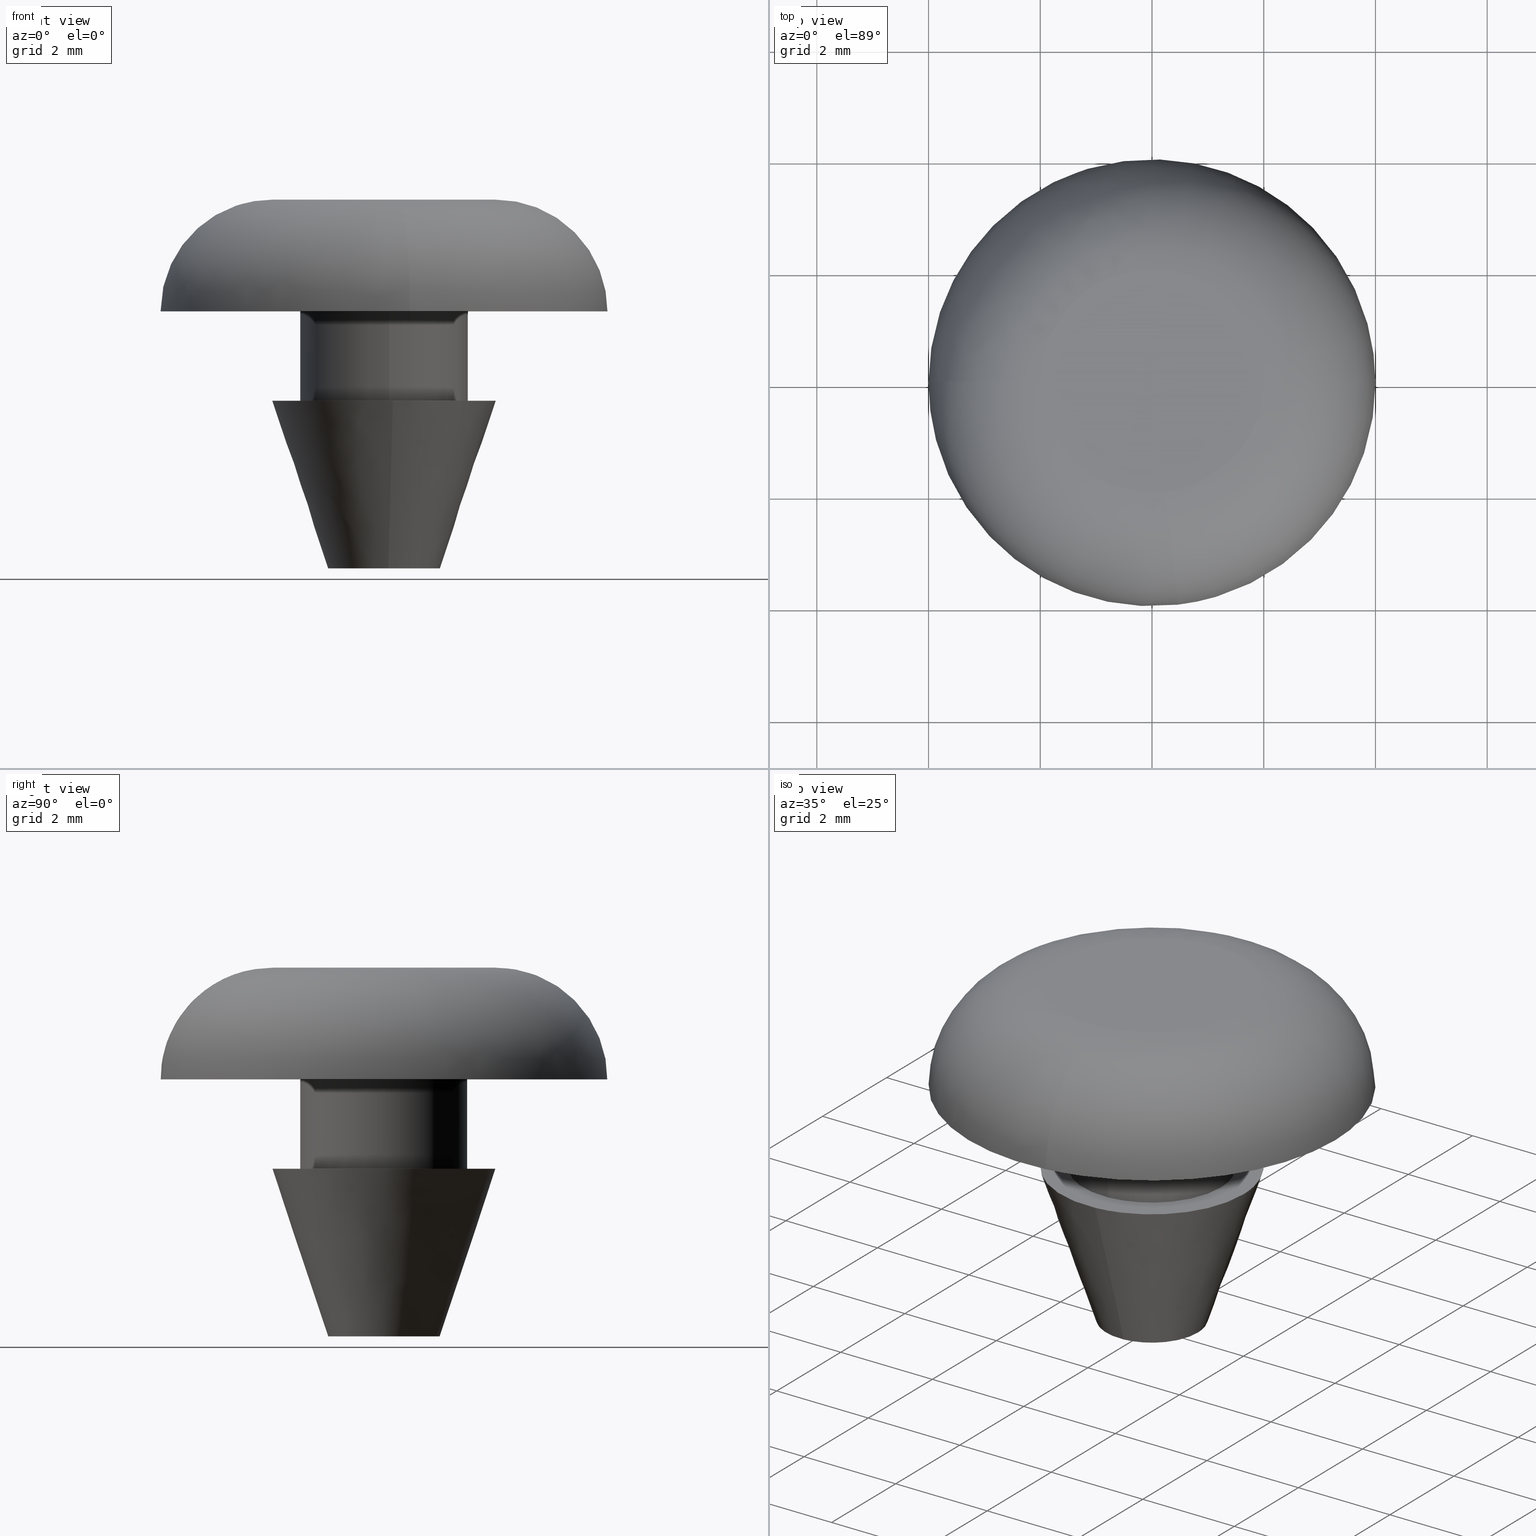
[diagram: canonical four-view strip — front | top / right | iso, engineering-drawing reading convention]
A machine part, canonical four-view strip (front | top / right | iso — engineering-drawing reading convention). The complete STEP part file that produces these views, byte-faithful:
ISO-10303-21;
HEADER;
/****************************************************************
 * Generated by software with PDE/Lib inside                    *
 * PDElib Version 4.4.1-0003, patched  Thursday August 19 11:58 *
 * International Technegroup Inc. (www.iti-oh.com)              *
 ****************************************************************/
FILE_DESCRIPTION((''),'2;1');
FILE_NAME('','2005-12-15T09:46:41',(''),(''),'','CADfix','');
FILE_SCHEMA(('AUTOMOTIVE_DESIGN'));
ENDSEC;
DATA;
#5=APPLICATION_CONTEXT('automotive design');
#6=APPLICATION_PROTOCOL_DEFINITION('Draft International Standard','automotive_design',1998,#5);
#7=PRODUCT_CONTEXT('None',#5,'mechanical');
#8=PRODUCT('cushion','','None',(#7));
#9=PRODUCT_RELATED_PRODUCT_CATEGORY('part','description',(#8));
#10=PRODUCT_DEFINITION_FORMATION('None','None',#8);
#11=PRODUCT_DEFINITION_CONTEXT('part definition',#5,'design');
#12=PRODUCT_DEFINITION('None','None',#10,#11);
#18=(NAMED_UNIT(*)PLANE_ANGLE_UNIT()SI_UNIT($,.RADIAN.));
#19=DIMENSIONAL_EXPONENTS(0.0,0.0,0.0,0.0,0.0,0.0,0.0);
#20=PLANE_ANGLE_MEASURE_WITH_UNIT(PLANE_ANGLE_MEASURE(0.017453292500000),#18);
#24=(CONVERSION_BASED_UNIT('DEGREE',#20)NAMED_UNIT(#19)PLANE_ANGLE_UNIT());
#28=(NAMED_UNIT(*)SI_UNIT($,.STERADIAN.)SOLID_ANGLE_UNIT());
#32=(LENGTH_UNIT()NAMED_UNIT(*)SI_UNIT(.MILLI.,.METRE.));
#34=UNCERTAINTY_MEASURE_WITH_UNIT(LENGTH_MEASURE(0.001000000000000),#32,'DISTANCE_ACCURACY_VALUE','');
#36=(GEOMETRIC_REPRESENTATION_CONTEXT(3)GLOBAL_UNCERTAINTY_ASSIGNED_CONTEXT((#34))GLOBAL_UNIT_ASSIGNED_CONTEXT((#24,#28,#32))REPRESENTATION_CONTEXT('None','None'));
#37=AXIS2_PLACEMENT_3D('',#38,#39,#40);
#38=CARTESIAN_POINT('',(0.0,0.0,0.0));
#39=DIRECTION('',(0.0,0.0,1.0));
#40=DIRECTION('',(1.0,0.0,0.0));
#41=ADVANCED_BREP_SHAPE_REPRESENTATION('',(#37,#883),#36);
#42=PRODUCT_DEFINITION_SHAPE('','',#12);
#43=SHAPE_DEFINITION_REPRESENTATION(#42,#41);
#44=CARTESIAN_POINT('',(0.059017117328379,-0.496504763181833,4.715000000000001));
#45=CARTESIAN_POINT('',(0.044807364318989,-0.498193807724303,4.715000000000001));
#46=CARTESIAN_POINT('',(0.030524269767428,-0.499067399210933,4.715000000000001));
#47=CARTESIAN_POINT('',(-0.468543129443505,-0.529591668978362,4.715000000000000));
#48=CARTESIAN_POINT('',(-0.499067399210933,-0.030524269767428,4.715000000000001));
#49=CARTESIAN_POINT('',(-0.529591668978362,0.468543129443505,4.715000000000000));
#50=CARTESIAN_POINT('',(-0.030524269767428,0.499067399210933,4.715000000000001));
#51=CARTESIAN_POINT('',(0.059017117328379,-0.496504763181833,-0.117875000000000));
#52=CARTESIAN_POINT('',(0.044807364318989,-0.498193807724303,-0.117875000000000));
#53=CARTESIAN_POINT('',(0.030524269767428,-0.499067399210933,-0.117875000000000));
#54=CARTESIAN_POINT('',(-0.468543129443505,-0.529591668978362,-0.117875000000000));
#55=CARTESIAN_POINT('',(-0.499067399210933,-0.030524269767428,-0.117875000000000));
#56=CARTESIAN_POINT('',(-0.529591668978362,0.468543129443505,-0.117875000000000));
#57=CARTESIAN_POINT('',(-0.030524269767428,0.499067399210933,-0.117875000000000));
#65=(BOUNDED_SURFACE()B_SPLINE_SURFACE(2,1,((#44,#51),(#45,#52),(#46,#53),(#47,#54),(#48,#55),(#49,#56),(#50,#57)),.UNSPECIFIED.,.F.,.F.,.U.)B_SPLINE_SURFACE_WITH_KNOTS((3,2,2,3),(2,2),(3.078760800517997,3.141592653589793,4.712388980384690,6.283185307179586),(0.0,4.832875000000001),.UNSPECIFIED.)GEOMETRIC_REPRESENTATION_ITEM()RATIONAL_B_SPLINE_SURFACE(((0.977505800795127,0.977505800795127),(0.988284271247462,0.988284271247462),(1.0,1.0),(0.707106781186548,0.707106781186548),(1.0,1.0),(0.707106781186548,0.707106781186548),(1.0,1.0)))REPRESENTATION_ITEM('')SURFACE());
#66=CARTESIAN_POINT('',(0.059017117343035,-0.496504763180091,4.600000000000000));
#67=VERTEX_POINT('',#66);
#68=CARTESIAN_POINT('',(-0.500000000000000,0.0,4.600000000000000));
#69=VERTEX_POINT('',#68);
#70=CARTESIAN_POINT('',(0.059017117343035,-0.496504763180091,4.600000000000000));
#71=CARTESIAN_POINT('',(0.029612059840766,-0.500000000000000,4.600000000000001));
#72=CARTESIAN_POINT('',(0.0,-0.500000000000000,4.600000000000000));
#73=CARTESIAN_POINT('',(-0.500000000000000,-0.500000000000000,4.599999999999999));
#74=CARTESIAN_POINT('',(-0.500000000000000,0.0,4.600000000000000));
#82=(BOUNDED_CURVE()B_SPLINE_CURVE(2,(#70,#71,#72,#73,#74),.UNSPECIFIED.,.F.,.U.)B_SPLINE_CURVE_WITH_KNOTS((3,2,3),(0.229562473505667,0.250000000000000,0.500000000000000),.UNSPECIFIED.)CURVE()GEOMETRIC_REPRESENTATION_ITEM()RATIONAL_B_SPLINE_CURVE((0.956026754168330,0.976055948321959,1.0,0.707106781186548,1.0))REPRESENTATION_ITEM(''));
#83=EDGE_CURVE('',#67,#69,#82,.T.);
#84=ORIENTED_EDGE('',*,*,#83,.F.);
#85=CARTESIAN_POINT('',(0.059017117343035,-0.496504763180091,-7.808428E-017));
#86=VERTEX_POINT('',#85);
#87=CARTESIAN_POINT('',(0.059017117343035,-0.496504763180091,4.600000000000000));
#88=CARTESIAN_POINT('',(0.059017117343035,-0.496504763180091,-7.808428E-017));
#89=QUASI_UNIFORM_CURVE('',1,(#87,#88),.UNSPECIFIED.,.F.,.U.);
#90=EDGE_CURVE('',#67,#86,#89,.T.);
#91=ORIENTED_EDGE('',*,*,#90,.T.);
#92=CARTESIAN_POINT('',(-0.500000000000000,0.0,0.0));
#93=VERTEX_POINT('',#92);
#94=CARTESIAN_POINT('',(0.059017117343035,-0.496504763180091,-7.808428E-017));
#95=CARTESIAN_POINT('',(0.029612059840765,-0.500000000000000,0.0));
#96=CARTESIAN_POINT('',(0.0,-0.500000000000000,0.0));
#97=CARTESIAN_POINT('',(-0.500000000000000,-0.500000000000000,0.0));
#98=CARTESIAN_POINT('',(-0.500000000000000,0.0,0.0));
#106=(BOUNDED_CURVE()B_SPLINE_CURVE(2,(#94,#95,#96,#97,#98),.UNSPECIFIED.,.F.,.U.)B_SPLINE_CURVE_WITH_KNOTS((3,2,3),(0.229562473505667,0.250000000000000,0.500000000000000),.UNSPECIFIED.)CURVE()GEOMETRIC_REPRESENTATION_ITEM()RATIONAL_B_SPLINE_CURVE((0.956026754168330,0.976055948321959,1.0,0.707106781186548,1.0))REPRESENTATION_ITEM(''));
#107=EDGE_CURVE('',#86,#93,#106,.T.);
#108=ORIENTED_EDGE('',*,*,#107,.T.);
#109=CARTESIAN_POINT('',(-0.030523833243788,0.499067425909480,4.579670E-016));
#110=VERTEX_POINT('',#109);
#111=CARTESIAN_POINT('',(-0.500000000000000,0.0,0.0));
#112=CARTESIAN_POINT('',(-0.500000000000000,0.470353857806655,0.0));
#113=CARTESIAN_POINT('',(-0.030523833243788,0.499067425909480,4.579670E-016));
#121=(BOUNDED_CURVE()B_SPLINE_CURVE(2,(#111,#112,#113),.UNSPECIFIED.,.F.,.U.)B_SPLINE_CURVE_WITH_KNOTS((3,3),(0.500000000000000,0.739333264088066),.UNSPECIFIED.)CURVE()GEOMETRIC_REPRESENTATION_ITEM()RATIONAL_B_SPLINE_CURVE((1.0,0.719603639648465,0.976072688587702))REPRESENTATION_ITEM(''));
#122=EDGE_CURVE('',#93,#110,#121,.T.);
#123=ORIENTED_EDGE('',*,*,#122,.T.);
#124=CARTESIAN_POINT('',(-0.030523827905823,0.499067426235954,4.600000000000001));
#125=VERTEX_POINT('',#124);
#126=CARTESIAN_POINT('',(-0.030523827905823,0.499067426235954,4.600000000000001));
#127=CARTESIAN_POINT('',(-0.030523833243788,0.499067425909480,4.579670E-016));
#128=QUASI_UNIFORM_CURVE('',1,(#126,#127),.UNSPECIFIED.,.F.,.U.);
#129=EDGE_CURVE('',#125,#110,#128,.T.);
#130=ORIENTED_EDGE('',*,*,#129,.F.);
#131=CARTESIAN_POINT('',(-0.500000000000000,0.0,4.600000000000000));
#132=CARTESIAN_POINT('',(-0.500000000000000,0.470353867887155,4.599999999999999));
#133=CARTESIAN_POINT('',(-0.030523827905823,0.499067426235954,4.600000000000001));
#141=(BOUNDED_CURVE()B_SPLINE_CURVE(2,(#131,#132,#133),.UNSPECIFIED.,.F.,.U.)B_SPLINE_CURVE_WITH_KNOTS((3,3),(0.500000000000000,0.739333267779149),.UNSPECIFIED.)CURVE()GEOMETRIC_REPRESENTATION_ITEM()RATIONAL_B_SPLINE_CURVE((1.0,0.719603635324092,0.976072696498417))REPRESENTATION_ITEM(''));
#142=EDGE_CURVE('',#69,#125,#141,.T.);
#143=ORIENTED_EDGE('',*,*,#142,.F.);
#144=EDGE_LOOP('',(#84,#91,#108,#123,#130,#143));
#145=FACE_OUTER_BOUND('',#144,.T.);
#146=ADVANCED_FACE('',(#145),#65,.F.);
#147=CARTESIAN_POINT('',(-0.030524269767428,0.499067399210933,4.715000000000001));
#148=CARTESIAN_POINT('',(0.468543129443505,0.529591668978362,4.715000000000000));
#149=CARTESIAN_POINT('',(0.499067399210933,0.030524269767428,4.715000000000001));
#150=CARTESIAN_POINT('',(0.527893098366264,-0.440771745419750,4.715000000000000));
#151=CARTESIAN_POINT('',(0.059017117328379,-0.496504763181833,4.715000000000001));
#152=CARTESIAN_POINT('',(-0.030524269767428,0.499067399210933,-0.117875000000000));
#153=CARTESIAN_POINT('',(0.468543129443505,0.529591668978362,-0.117875000000000));
#154=CARTESIAN_POINT('',(0.499067399210933,0.030524269767428,-0.117875000000000));
#155=CARTESIAN_POINT('',(0.527893098366264,-0.440771745419750,-0.117875000000000));
#156=CARTESIAN_POINT('',(0.059017117328379,-0.496504763181833,-0.117875000000000));
#164=(BOUNDED_SURFACE()B_SPLINE_SURFACE(2,1,((#147,#152),(#148,#153),(#149,#154),(#150,#155),(#151,#156)),.UNSPECIFIED.,.F.,.F.,.U.)B_SPLINE_SURFACE_WITH_KNOTS((3,2,3),(2,2),(0.0,1.570796326794897,3.078760800517997),(0.0,4.832875000000001),.UNSPECIFIED.)GEOMETRIC_REPRESENTATION_ITEM()RATIONAL_B_SPLINE_SURFACE(((1.0,1.0),(0.707106781186548,0.707106781186548),(1.0,1.0),(0.718822509939086,0.718822509939086),(0.977505800795127,0.977505800795127)))REPRESENTATION_ITEM('')SURFACE());
#165=CARTESIAN_POINT('',(0.500000000000000,0.0,4.600000000000000));
#166=VERTEX_POINT('',#165);
#167=CARTESIAN_POINT('',(0.500000000000000,0.0,4.600000000000000));
#168=CARTESIAN_POINT('',(0.500000000000000,-0.444087262949283,4.600000000000000));
#169=CARTESIAN_POINT('',(0.059017117343035,-0.496504763180091,4.600000000000000));
#177=(BOUNDED_CURVE()B_SPLINE_CURVE(2,(#167,#168,#169),.UNSPECIFIED.,.F.,.U.)B_SPLINE_CURVE_WITH_KNOTS((3,3),(0.0,0.229562473505667),.UNSPECIFIED.)CURVE()GEOMETRIC_REPRESENTATION_ITEM()RATIONAL_B_SPLINE_CURVE((1.0,0.731050832864589,0.956026754168330))REPRESENTATION_ITEM(''));
#178=EDGE_CURVE('',#166,#67,#177,.T.);
#179=ORIENTED_EDGE('',*,*,#178,.F.);
#180=CARTESIAN_POINT('',(-0.030523827905823,0.499067426235954,4.600000000000001));
#181=CARTESIAN_POINT('',(-0.015275938548788,0.500000000000000,4.600000000000000));
#182=CARTESIAN_POINT('',(0.0,0.500000000000000,4.600000000000000));
#183=CARTESIAN_POINT('',(0.500000000000000,0.500000000000000,4.599999999999999));
#184=CARTESIAN_POINT('',(0.500000000000000,0.0,4.600000000000000));
#192=(BOUNDED_CURVE()B_SPLINE_CURVE(2,(#180,#181,#182,#183,#184),.UNSPECIFIED.,.F.,.U.)B_SPLINE_CURVE_WITH_KNOTS((3,2,3),(0.739333267779149,0.750000000000000,1.0),.UNSPECIFIED.)CURVE()GEOMETRIC_REPRESENTATION_ITEM()RATIONAL_B_SPLINE_CURVE((0.976072696498416,0.987503145862455,1.0,0.707106781186548,1.0))REPRESENTATION_ITEM(''));
#193=EDGE_CURVE('',#125,#166,#192,.T.);
#194=ORIENTED_EDGE('',*,*,#193,.F.);
#195=ORIENTED_EDGE('',*,*,#129,.T.);
#196=CARTESIAN_POINT('',(0.500000000000000,0.0,0.0));
#197=VERTEX_POINT('',#196);
#198=CARTESIAN_POINT('',(-0.030523833243788,0.499067425909480,4.579670E-016));
#199=CARTESIAN_POINT('',(-0.015275943901719,0.500000000000000,0.0));
#200=CARTESIAN_POINT('',(0.0,0.500000000000000,0.0));
#201=CARTESIAN_POINT('',(0.500000000000000,0.500000000000000,0.0));
#202=CARTESIAN_POINT('',(0.500000000000000,0.0,0.0));
#210=(BOUNDED_CURVE()B_SPLINE_CURVE(2,(#198,#199,#200,#201,#202),.UNSPECIFIED.,.F.,.U.)B_SPLINE_CURVE_WITH_KNOTS((3,2,3),(0.739333264088067,0.750000000000000,1.0),.UNSPECIFIED.)CURVE()GEOMETRIC_REPRESENTATION_ITEM()RATIONAL_B_SPLINE_CURVE((0.976072688587704,0.987503141538084,1.0,0.707106781186548,1.0))REPRESENTATION_ITEM(''));
#211=EDGE_CURVE('',#110,#197,#210,.T.);
#212=ORIENTED_EDGE('',*,*,#211,.T.);
#213=CARTESIAN_POINT('',(0.500000000000000,0.0,0.0));
#214=CARTESIAN_POINT('',(0.500000000000000,-0.444087262949283,0.0));
#215=CARTESIAN_POINT('',(0.059017117343035,-0.496504763180091,-7.808428E-017));
#223=(BOUNDED_CURVE()B_SPLINE_CURVE(2,(#213,#214,#215),.UNSPECIFIED.,.F.,.U.)B_SPLINE_CURVE_WITH_KNOTS((3,3),(0.0,0.229562473505667),.UNSPECIFIED.)CURVE()GEOMETRIC_REPRESENTATION_ITEM()RATIONAL_B_SPLINE_CURVE((1.0,0.731050832864589,0.956026754168330))REPRESENTATION_ITEM(''));
#224=EDGE_CURVE('',#197,#86,#223,.T.);
#225=ORIENTED_EDGE('',*,*,#224,.T.);
#226=ORIENTED_EDGE('',*,*,#90,.F.);
#227=EDGE_LOOP('',(#179,#194,#195,#212,#225,#226));
#228=FACE_OUTER_BOUND('',#227,.T.);
#229=ADVANCED_FACE('',(#228),#164,.F.);
#230=CARTESIAN_POINT('',(-0.177051351985138,1.489514289545500,4.640000000000001));
#231=CARTESIAN_POINT('',(-0.134422092956966,1.494581423172908,4.640000000000001));
#232=CARTESIAN_POINT('',(-0.091572809302285,1.497202197632800,4.640000000000001));
#233=CARTESIAN_POINT('',(1.405629388330515,1.588775006935085,4.640000000000001));
#234=CARTESIAN_POINT('',(1.497202197632800,0.091572809302285,4.640000000000001));
#235=CARTESIAN_POINT('',(1.588775006935085,-1.405629388330515,4.640000000000001));
#236=CARTESIAN_POINT('',(0.091572809302285,-1.497202197632800,4.640000000000001));
#237=CARTESIAN_POINT('',(-0.177051351985138,1.489514289545500,2.959000000000000));
#238=CARTESIAN_POINT('',(-0.134422092956966,1.494581423172908,2.959000000000001));
#239=CARTESIAN_POINT('',(-0.091572809302285,1.497202197632800,2.959000000000000));
#240=CARTESIAN_POINT('',(1.405629388330515,1.588775006935085,2.959000000000000));
#241=CARTESIAN_POINT('',(1.497202197632800,0.091572809302285,2.959000000000000));
#242=CARTESIAN_POINT('',(1.588775006935085,-1.405629388330515,2.959000000000000));
#243=CARTESIAN_POINT('',(0.091572809302285,-1.497202197632800,2.959000000000000));
#251=(BOUNDED_SURFACE()B_SPLINE_SURFACE(2,1,((#230,#237),(#231,#238),(#232,#239),(#233,#240),(#234,#241),(#235,#242),(#236,#243)),.UNSPECIFIED.,.F.,.F.,.U.)B_SPLINE_SURFACE_WITH_KNOTS((3,2,2,3),(2,2),(3.078760800517997,3.141592653589793,4.712388980384690,6.283185307179586),(0.0,1.0),.UNSPECIFIED.)GEOMETRIC_REPRESENTATION_ITEM()RATIONAL_B_SPLINE_SURFACE(((0.977505800795127,0.977505800795127),(0.988284271247462,0.988284271247462),(1.0,1.0),(0.707106781186548,0.707106781186548),(1.0,1.0),(0.707106781186548,0.707106781186548),(1.0,1.0)))REPRESENTATION_ITEM('')SURFACE());
#252=CARTESIAN_POINT('',(-0.177050448908415,1.489514396889302,4.599999999999993));
#253=VERTEX_POINT('',#252);
#254=CARTESIAN_POINT('',(1.500000000000000,0.0,4.600000000000000));
#255=VERTEX_POINT('',#254);
#256=CARTESIAN_POINT('',(-0.177050448908415,1.489514396889302,4.599999999999993));
#257=CARTESIAN_POINT('',(-0.088835266854029,1.500000000000000,4.600000000000000));
#258=CARTESIAN_POINT('',(0.0,1.500000000000000,4.600000000000000));
#259=CARTESIAN_POINT('',(1.500000000000000,1.500000000000000,4.599999999999999));
#260=CARTESIAN_POINT('',(1.500000000000000,0.0,4.600000000000000));
#268=(BOUNDED_CURVE()B_SPLINE_CURVE(2,(#256,#257,#258,#259,#260),.UNSPECIFIED.,.F.,.U.)B_SPLINE_CURVE_WITH_KNOTS((3,2,3),(0.229562678445430,0.250000000000000,0.500000000000000),.UNSPECIFIED.)CURVE()GEOMETRIC_REPRESENTATION_ITEM()RATIONAL_B_SPLINE_CURVE((0.956027155859047,0.976056188423826,1.0,0.707106781186548,1.0))REPRESENTATION_ITEM(''));
#269=EDGE_CURVE('',#253,#255,#268,.T.);
#270=ORIENTED_EDGE('',*,*,#269,.T.);
#271=CARTESIAN_POINT('',(0.091571162752735,-1.497202298338268,4.600000000000012));
#272=VERTEX_POINT('',#271);
#273=CARTESIAN_POINT('',(1.500000000000000,0.0,4.600000000000000));
#274=CARTESIAN_POINT('',(1.500000000000000,-1.411060655072693,4.600000000000001));
#275=CARTESIAN_POINT('',(0.091571162752735,-1.497202298338268,4.600000000000014));
#283=(BOUNDED_CURVE()B_SPLINE_CURVE(2,(#273,#274,#275),.UNSPECIFIED.,.F.,.U.)B_SPLINE_CURVE_WITH_KNOTS((3,3),(0.500000000000000,0.739333152000493),.UNSPECIFIED.)CURVE()GEOMETRIC_REPRESENTATION_ITEM()RATIONAL_B_SPLINE_CURVE((1.0,0.719603770967226,0.976072448362179))REPRESENTATION_ITEM(''));
#284=EDGE_CURVE('',#255,#272,#283,.T.);
#285=ORIENTED_EDGE('',*,*,#284,.T.);
#286=CARTESIAN_POINT('',(0.091571182612992,-1.497202297123606,3.0));
#287=VERTEX_POINT('',#286);
#288=CARTESIAN_POINT('',(0.091571162752735,-1.497202298338268,4.600000000000012));
#289=CARTESIAN_POINT('',(0.091571182612992,-1.497202297123606,3.0));
#290=QUASI_UNIFORM_CURVE('',1,(#288,#289),.UNSPECIFIED.,.F.,.U.);
#291=EDGE_CURVE('',#272,#287,#290,.T.);
#292=ORIENTED_EDGE('',*,*,#291,.T.);
#293=CARTESIAN_POINT('',(1.500000000000000,0.0,3.0));
#294=VERTEX_POINT('',#293);
#295=CARTESIAN_POINT('',(1.500000000000000,0.0,3.0));
#296=CARTESIAN_POINT('',(1.500000000000000,-1.411060636320122,3.000000000000000));
#297=CARTESIAN_POINT('',(0.091571182612992,-1.497202297123605,3.000000000000001));
#305=(BOUNDED_CURVE()B_SPLINE_CURVE(2,(#295,#296,#297),.UNSPECIFIED.,.F.,.U.)B_SPLINE_CURVE_WITH_KNOTS((3,3),(0.500000000000000,0.739333149711674),.UNSPECIFIED.)CURVE()GEOMETRIC_REPRESENTATION_ITEM()RATIONAL_B_SPLINE_CURVE((1.0,0.719603773648744,0.976072443456796))REPRESENTATION_ITEM(''));
#306=EDGE_CURVE('',#294,#287,#305,.T.);
#307=ORIENTED_EDGE('',*,*,#306,.F.);
#308=CARTESIAN_POINT('',(-0.177050459774724,1.489514395597690,3.0));
#309=VERTEX_POINT('',#308);
#310=CARTESIAN_POINT('',(-0.177050459774724,1.489514395597690,3.000000000000001));
#311=CARTESIAN_POINT('',(-0.088835277835213,1.500000000000000,3.000000000000000));
#312=CARTESIAN_POINT('',(0.0,1.500000000000000,3.0));
#313=CARTESIAN_POINT('',(1.500000000000000,1.500000000000000,3.0));
#314=CARTESIAN_POINT('',(1.500000000000000,0.0,3.0));
#322=(BOUNDED_CURVE()B_SPLINE_CURVE(2,(#310,#311,#312,#313,#314),.UNSPECIFIED.,.F.,.U.)B_SPLINE_CURVE_WITH_KNOTS((3,2,3),(0.229562675979604,0.250000000000000,0.500000000000000),.UNSPECIFIED.)CURVE()GEOMETRIC_REPRESENTATION_ITEM()RATIONAL_B_SPLINE_CURVE((0.956027151025916,0.976056185534931,1.0,0.707106781186548,1.0))REPRESENTATION_ITEM(''));
#323=EDGE_CURVE('',#309,#294,#322,.T.);
#324=ORIENTED_EDGE('',*,*,#323,.F.);
#325=CARTESIAN_POINT('',(-0.177050448908415,1.489514396889302,4.599999999999993));
#326=CARTESIAN_POINT('',(-0.177050459774724,1.489514395597690,3.0));
#327=QUASI_UNIFORM_CURVE('',1,(#325,#326),.UNSPECIFIED.,.F.,.U.);
#328=EDGE_CURVE('',#253,#309,#327,.T.);
#329=ORIENTED_EDGE('',*,*,#328,.F.);
#330=EDGE_LOOP('',(#270,#285,#292,#307,#324,#329));
#331=FACE_OUTER_BOUND('',#330,.T.);
#332=ADVANCED_FACE('',(#331),#251,.T.);
#333=CARTESIAN_POINT('',(0.091572809302285,-1.497202197632800,4.640000000000001));
#334=CARTESIAN_POINT('',(-1.405629388330515,-1.588775006935085,4.640000000000001));
#335=CARTESIAN_POINT('',(-1.497202197632800,-0.091572809302285,4.640000000000001));
#336=CARTESIAN_POINT('',(-1.583679295098791,1.322315236259252,4.640000000000001));
#337=CARTESIAN_POINT('',(-0.177051351985138,1.489514289545500,4.640000000000001));
#338=CARTESIAN_POINT('',(0.091572809302285,-1.497202197632800,2.959000000000000));
#339=CARTESIAN_POINT('',(-1.405629388330515,-1.588775006935085,2.959000000000000));
#340=CARTESIAN_POINT('',(-1.497202197632800,-0.091572809302285,2.959000000000000));
#341=CARTESIAN_POINT('',(-1.583679295098791,1.322315236259252,2.958999999999999));
#342=CARTESIAN_POINT('',(-0.177051351985138,1.489514289545500,2.959000000000000));
#350=(BOUNDED_SURFACE()B_SPLINE_SURFACE(2,1,((#333,#338),(#334,#339),(#335,#340),(#336,#341),(#337,#342)),.UNSPECIFIED.,.F.,.F.,.U.)B_SPLINE_SURFACE_WITH_KNOTS((3,2,3),(2,2),(0.0,1.570796326794897,3.078760800517997),(0.0,1.0),.UNSPECIFIED.)GEOMETRIC_REPRESENTATION_ITEM()RATIONAL_B_SPLINE_SURFACE(((1.0,1.0),(0.707106781186548,0.707106781186548),(1.0,1.0),(0.718822509939086,0.718822509939086),(0.977505800795127,0.977505800795127)))REPRESENTATION_ITEM('')SURFACE());
#351=CARTESIAN_POINT('',(-1.500000000000000,0.0,4.600000000000000));
#352=VERTEX_POINT('',#351);
#353=CARTESIAN_POINT('',(-1.500000000000000,0.0,4.600000000000000));
#354=CARTESIAN_POINT('',(-1.500000000000000,1.332263415772623,4.600000000000000));
#355=CARTESIAN_POINT('',(-0.177050448908415,1.489514396889302,4.599999999999993));
#363=(BOUNDED_CURVE()B_SPLINE_CURVE(2,(#353,#354,#355),.UNSPECIFIED.,.F.,.U.)B_SPLINE_CURVE_WITH_KNOTS((3,3),(0.0,0.229562678445430),.UNSPECIFIED.)CURVE()GEOMETRIC_REPRESENTATION_ITEM()RATIONAL_B_SPLINE_CURVE((1.0,0.731050592762722,0.956027155859047))REPRESENTATION_ITEM(''));
#364=EDGE_CURVE('',#352,#253,#363,.T.);
#365=ORIENTED_EDGE('',*,*,#364,.T.);
#366=ORIENTED_EDGE('',*,*,#328,.T.);
#367=CARTESIAN_POINT('',(-1.500000000000000,0.0,3.0));
#368=VERTEX_POINT('',#367);
#369=CARTESIAN_POINT('',(-1.500000000000000,0.0,3.0));
#370=CARTESIAN_POINT('',(-1.500000000000000,1.332263396197527,3.0));
#371=CARTESIAN_POINT('',(-0.177050459774724,1.489514395597690,3.000000000000001));
#379=(BOUNDED_CURVE()B_SPLINE_CURVE(2,(#369,#370,#371),.UNSPECIFIED.,.F.,.U.)B_SPLINE_CURVE_WITH_KNOTS((3,3),(0.0,0.229562675979604),.UNSPECIFIED.)CURVE()GEOMETRIC_REPRESENTATION_ITEM()RATIONAL_B_SPLINE_CURVE((1.0,0.731050595651617,0.956027151025916))REPRESENTATION_ITEM(''));
#380=EDGE_CURVE('',#368,#309,#379,.T.);
#381=ORIENTED_EDGE('',*,*,#380,.F.);
#382=CARTESIAN_POINT('',(0.091571182612992,-1.497202297123605,3.000000000000001));
#383=CARTESIAN_POINT('',(0.045828329322765,-1.500000000000000,3.000000000000000));
#384=CARTESIAN_POINT('',(0.0,-1.500000000000000,3.0));
#385=CARTESIAN_POINT('',(-1.500000000000000,-1.500000000000000,3.0));
#386=CARTESIAN_POINT('',(-1.500000000000000,0.0,3.0));
#394=(BOUNDED_CURVE()B_SPLINE_CURVE(2,(#382,#383,#384,#385,#386),.UNSPECIFIED.,.F.,.U.)B_SPLINE_CURVE_WITH_KNOTS((3,2,3),(0.739333149711674,0.750000000000000,1.0),.UNSPECIFIED.)CURVE()GEOMETRIC_REPRESENTATION_ITEM()RATIONAL_B_SPLINE_CURVE((0.976072443456796,0.987503007537804,1.0,0.707106781186548,1.0))REPRESENTATION_ITEM(''));
#395=EDGE_CURVE('',#287,#368,#394,.T.);
#396=ORIENTED_EDGE('',*,*,#395,.F.);
#397=ORIENTED_EDGE('',*,*,#291,.F.);
#398=CARTESIAN_POINT('',(0.091571162752735,-1.497202298338268,4.600000000000014));
#399=CARTESIAN_POINT('',(0.045828319364795,-1.499999999999999,4.600000000000001));
#400=CARTESIAN_POINT('',(0.0,-1.500000000000000,4.600000000000000));
#401=CARTESIAN_POINT('',(-1.500000000000000,-1.500000000000000,4.599999999999999));
#402=CARTESIAN_POINT('',(-1.500000000000000,0.0,4.600000000000000));
#410=(BOUNDED_CURVE()B_SPLINE_CURVE(2,(#398,#399,#400,#401,#402),.UNSPECIFIED.,.F.,.U.)B_SPLINE_CURVE_WITH_KNOTS((3,2,3),(0.739333152000493,0.750000000000000,1.0),.UNSPECIFIED.)CURVE()GEOMETRIC_REPRESENTATION_ITEM()RATIONAL_B_SPLINE_CURVE((0.976072448362179,0.987503010219322,1.0,0.707106781186548,1.0))REPRESENTATION_ITEM(''));
#411=EDGE_CURVE('',#272,#352,#410,.T.);
#412=ORIENTED_EDGE('',*,*,#411,.T.);
#413=EDGE_LOOP('',(#365,#366,#381,#396,#397,#412));
#414=FACE_OUTER_BOUND('',#413,.T.);
#415=ADVANCED_FACE('',(#414),#350,.T.);
#416=CARTESIAN_POINT('',(-0.076497618334649,0.971994400389800,-0.075000000000000));
#417=CARTESIAN_POINT('',(-1.048492018724449,0.895496782055150,-0.075000000000000));
#418=CARTESIAN_POINT('',(-0.971994400389800,-0.076497618334649,-0.075000000000000));
#419=CARTESIAN_POINT('',(-0.895496782055150,-1.048492018724449,-0.075000000000000));
#420=CARTESIAN_POINT('',(0.076497618334649,-0.971994400389800,-0.075000000000000));
#421=CARTESIAN_POINT('',(-0.158928705783717,2.019380674143162,3.076875000000001));
#422=CARTESIAN_POINT('',(-2.178309379926879,1.860451968359445,3.076875000000000));
#423=CARTESIAN_POINT('',(-2.019380674143162,-0.158928705783717,3.076875000000001));
#424=CARTESIAN_POINT('',(-1.860451968359445,-2.178309379926879,3.076875000000000));
#425=CARTESIAN_POINT('',(0.158928705783717,-2.019380674143162,3.076875000000001));
#433=(BOUNDED_SURFACE()B_SPLINE_SURFACE(2,1,((#416,#421),(#417,#422),(#418,#423),(#419,#424),(#420,#425)),.UNSPECIFIED.,.F.,.F.,.U.)B_SPLINE_SURFACE_WITH_KNOTS((3,2,3),(2,2),(0.0,3.356165389127995,6.712330778255989),(0.0,3.322367966714403),.UNSPECIFIED.)GEOMETRIC_REPRESENTATION_ITEM()RATIONAL_B_SPLINE_SURFACE(((1.0,1.0),(0.707106781186548,0.707106781186548),(1.0,1.0),(0.707106781186548,0.707106781186548),(1.0,1.0)))REPRESENTATION_ITEM('')SURFACE());
#434=CARTESIAN_POINT('',(-1.0,0.0,0.0));
#435=VERTEX_POINT('',#434);
#436=CARTESIAN_POINT('',(-0.078457802611758,0.996917092227118,-0.000001026649899));
#437=VERTEX_POINT('',#436);
#438=CARTESIAN_POINT('',(-1.0,0.0,0.0));
#439=CARTESIAN_POINT('',(-0.999999986575181,0.924391498852421,-0.000000513324950));
#440=CARTESIAN_POINT('',(-0.078457802611758,0.996917092227118,-0.000001026649899));
#448=(BOUNDED_CURVE()B_SPLINE_CURVE(2,(#438,#439,#440),.UNSPECIFIED.,.F.,.U.)B_SPLINE_CURVE_WITH_KNOTS((3,3),(0.0,0.236331518373108),.UNSPECIFIED.)CURVE()GEOMETRIC_REPRESENTATION_ITEM()RATIONAL_B_SPLINE_CURVE((1.0,0.723120403506519,0.969723810579741))REPRESENTATION_ITEM(''));
#449=EDGE_CURVE('',#435,#437,#448,.T.);
#450=ORIENTED_EDGE('',*,*,#449,.F.);
#451=CARTESIAN_POINT('',(0.078457802611758,-0.996917092227118,-0.000001026649899));
#452=VERTEX_POINT('',#451);
#453=CARTESIAN_POINT('',(0.078457802611758,-0.996917092227118,-0.000001026649899));
#454=CARTESIAN_POINT('',(0.039289444574258,-0.999999665032785,-0.000001008006522));
#455=CARTESIAN_POINT('',(-0.000000025834610,-0.999999671734833,-0.000000987838257));
#456=CARTESIAN_POINT('',(-1.000000012409791,-0.999999842316099,-0.000000474513307));
#457=CARTESIAN_POINT('',(-1.0,0.0,0.0));
#465=(BOUNDED_CURVE()B_SPLINE_CURVE(2,(#453,#454,#455,#456,#457),.UNSPECIFIED.,.F.,.U.)B_SPLINE_CURVE_WITH_KNOTS((3,2,3),(0.736331518373108,0.750000000000000,1.0),.UNSPECIFIED.)CURVE()GEOMETRIC_REPRESENTATION_ITEM()RATIONAL_B_SPLINE_CURVE((0.969723810579741,0.983986377680029,1.0,0.707106781186548,1.0))REPRESENTATION_ITEM(''));
#466=EDGE_CURVE('',#452,#435,#465,.T.);
#467=ORIENTED_EDGE('',*,*,#466,.F.);
#468=CARTESIAN_POINT('',(0.156917268877353,-1.993834493201659,2.999999261665062));
#469=VERTEX_POINT('',#468);
#470=CARTESIAN_POINT('',(0.078457802611758,-0.996917092227118,-0.000001026649899));
#471=CARTESIAN_POINT('',(0.156917268877353,-1.993834493201659,2.999999261665062));
#472=QUASI_UNIFORM_CURVE('',1,(#470,#471),.UNSPECIFIED.,.F.,.U.);
#473=EDGE_CURVE('',#452,#469,#472,.T.);
#474=ORIENTED_EDGE('',*,*,#473,.T.);
#475=CARTESIAN_POINT('',(-2.0,0.0,3.0));
#476=VERTEX_POINT('',#475);
#477=CARTESIAN_POINT('',(0.156917268877353,-1.993834493201660,2.999999261665062));
#478=CARTESIAN_POINT('',(0.078579760285092,-2.000000000000000,3.000000000000000));
#479=CARTESIAN_POINT('',(0.0,-2.0,3.0));
#480=CARTESIAN_POINT('',(-2.000000000000000,-2.000000000000000,3.0));
#481=CARTESIAN_POINT('',(-2.0,0.0,3.0));
#489=(BOUNDED_CURVE()B_SPLINE_CURVE(2,(#477,#478,#479,#480,#481),.UNSPECIFIED.,.F.,.U.)B_SPLINE_CURVE_WITH_KNOTS((3,2,3),(0.736331378293365,0.750000000000000,1.0),.UNSPECIFIED.)CURVE()GEOMETRIC_REPRESENTATION_ITEM()RATIONAL_B_SPLINE_CURVE((0.969723518243615,0.983986213566401,1.0,0.707106781186548,1.0))REPRESENTATION_ITEM(''));
#490=EDGE_CURVE('',#469,#476,#489,.T.);
#491=ORIENTED_EDGE('',*,*,#490,.T.);
#492=CARTESIAN_POINT('',(-0.156917268877353,1.993834493201659,2.999999261665062));
#493=VERTEX_POINT('',#492);
#494=CARTESIAN_POINT('',(-2.0,0.0,3.0));
#495=CARTESIAN_POINT('',(-2.000000000000000,1.848781823461392,3.000000000000000));
#496=CARTESIAN_POINT('',(-0.156917268877353,1.993834493201660,2.999999261665062));
#504=(BOUNDED_CURVE()B_SPLINE_CURVE(2,(#494,#495,#496),.UNSPECIFIED.,.F.,.U.)B_SPLINE_CURVE_WITH_KNOTS((3,3),(0.0,0.236331378293365),.UNSPECIFIED.)CURVE()GEOMETRIC_REPRESENTATION_ITEM()RATIONAL_B_SPLINE_CURVE((1.0,0.723120567620147,0.969723518243615))REPRESENTATION_ITEM(''));
#505=EDGE_CURVE('',#476,#493,#504,.T.);
#506=ORIENTED_EDGE('',*,*,#505,.T.);
#507=CARTESIAN_POINT('',(-0.078457802611758,0.996917092227118,-0.000001026649899));
#508=CARTESIAN_POINT('',(-0.156917268877353,1.993834493201659,2.999999261665062));
#509=QUASI_UNIFORM_CURVE('',1,(#507,#508),.UNSPECIFIED.,.F.,.U.);
#510=EDGE_CURVE('',#437,#493,#509,.T.);
#511=ORIENTED_EDGE('',*,*,#510,.F.);
#512=EDGE_LOOP('',(#450,#467,#474,#491,#506,#511));
#513=FACE_OUTER_BOUND('',#512,.T.);
#514=ADVANCED_FACE('',(#513),#433,.T.);
#515=CARTESIAN_POINT('',(0.076497618334649,-0.971994400389800,-0.075000000000000));
#516=CARTESIAN_POINT('',(1.048492018724449,-0.895496782055150,-0.075000000000000));
#517=CARTESIAN_POINT('',(0.971994400389800,0.076497618334649,-0.075000000000000));
#518=CARTESIAN_POINT('',(0.895496782055150,1.048492018724449,-0.075000000000000));
#519=CARTESIAN_POINT('',(-0.076497618334649,0.971994400389800,-0.075000000000000));
#520=CARTESIAN_POINT('',(0.158928705783717,-2.019380674143162,3.076875000000001));
#521=CARTESIAN_POINT('',(2.178309379926879,-1.860451968359445,3.076875000000000));
#522=CARTESIAN_POINT('',(2.019380674143162,0.158928705783717,3.076875000000001));
#523=CARTESIAN_POINT('',(1.860451968359445,2.178309379926879,3.076875000000000));
#524=CARTESIAN_POINT('',(-0.158928705783717,2.019380674143162,3.076875000000001));
#532=(BOUNDED_SURFACE()B_SPLINE_SURFACE(2,1,((#515,#520),(#516,#521),(#517,#522),(#518,#523),(#519,#524)),.UNSPECIFIED.,.F.,.F.,.U.)B_SPLINE_SURFACE_WITH_KNOTS((3,2,3),(2,2),(0.0,3.356165389127995,6.712330778255989),(0.0,3.322367966714403),.UNSPECIFIED.)GEOMETRIC_REPRESENTATION_ITEM()RATIONAL_B_SPLINE_SURFACE(((1.0,1.0),(0.707106781186548,0.707106781186548),(1.0,1.0),(0.707106781186548,0.707106781186548),(1.0,1.0)))REPRESENTATION_ITEM('')SURFACE());
#533=CARTESIAN_POINT('',(1.0,0.0,0.0));
#534=VERTEX_POINT('',#533);
#535=CARTESIAN_POINT('',(-0.078457802611758,0.996917092227118,-0.000001026649899));
#536=CARTESIAN_POINT('',(-0.039289444574258,0.999999665032785,-0.000001008006522));
#537=CARTESIAN_POINT('',(0.000000025834609,0.999999671734833,-0.000000987838257));
#538=CARTESIAN_POINT('',(1.000000012409791,0.999999842316099,-0.000000474513307));
#539=CARTESIAN_POINT('',(1.0,0.0,0.0));
#547=(BOUNDED_CURVE()B_SPLINE_CURVE(2,(#535,#536,#537,#538,#539),.UNSPECIFIED.,.F.,.U.)B_SPLINE_CURVE_WITH_KNOTS((3,2,3),(0.236331518373108,0.250000000000000,0.500000000000000),.UNSPECIFIED.)CURVE()GEOMETRIC_REPRESENTATION_ITEM()RATIONAL_B_SPLINE_CURVE((0.969723810579741,0.983986377680029,1.0,0.707106781186548,1.0))REPRESENTATION_ITEM(''));
#548=EDGE_CURVE('',#437,#534,#547,.T.);
#549=ORIENTED_EDGE('',*,*,#548,.F.);
#550=ORIENTED_EDGE('',*,*,#510,.T.);
#551=CARTESIAN_POINT('',(2.0,0.0,3.0));
#552=VERTEX_POINT('',#551);
#553=CARTESIAN_POINT('',(-0.156917268877353,1.993834493201660,2.999999261665062));
#554=CARTESIAN_POINT('',(-0.078579760285092,2.000000000000000,3.000000000000000));
#555=CARTESIAN_POINT('',(0.0,2.0,3.0));
#556=CARTESIAN_POINT('',(2.000000000000000,2.000000000000000,3.0));
#557=CARTESIAN_POINT('',(2.0,0.0,3.0));
#565=(BOUNDED_CURVE()B_SPLINE_CURVE(2,(#553,#554,#555,#556,#557),.UNSPECIFIED.,.F.,.U.)B_SPLINE_CURVE_WITH_KNOTS((3,2,3),(0.236331378293365,0.250000000000000,0.500000000000000),.UNSPECIFIED.)CURVE()GEOMETRIC_REPRESENTATION_ITEM()RATIONAL_B_SPLINE_CURVE((0.969723518243615,0.983986213566401,1.0,0.707106781186548,1.0))REPRESENTATION_ITEM(''));
#566=EDGE_CURVE('',#493,#552,#565,.T.);
#567=ORIENTED_EDGE('',*,*,#566,.T.);
#568=CARTESIAN_POINT('',(2.0,0.0,3.0));
#569=CARTESIAN_POINT('',(2.000000000000000,-1.848781823461392,3.000000000000000));
#570=CARTESIAN_POINT('',(0.156917268877353,-1.993834493201660,2.999999261665062));
#578=(BOUNDED_CURVE()B_SPLINE_CURVE(2,(#568,#569,#570),.UNSPECIFIED.,.F.,.U.)B_SPLINE_CURVE_WITH_KNOTS((3,3),(0.500000000000000,0.736331378293365),.UNSPECIFIED.)CURVE()GEOMETRIC_REPRESENTATION_ITEM()RATIONAL_B_SPLINE_CURVE((1.0,0.723120567620147,0.969723518243615))REPRESENTATION_ITEM(''));
#579=EDGE_CURVE('',#552,#469,#578,.T.);
#580=ORIENTED_EDGE('',*,*,#579,.T.);
#581=ORIENTED_EDGE('',*,*,#473,.F.);
#582=CARTESIAN_POINT('',(1.0,0.0,0.0));
#583=CARTESIAN_POINT('',(0.999999986575181,-0.924391498852421,-0.000000513324950));
#584=CARTESIAN_POINT('',(0.078457802611758,-0.996917092227118,-0.000001026649899));
#592=(BOUNDED_CURVE()B_SPLINE_CURVE(2,(#582,#583,#584),.UNSPECIFIED.,.F.,.U.)B_SPLINE_CURVE_WITH_KNOTS((3,3),(0.500000000000000,0.736331518373108),.UNSPECIFIED.)CURVE()GEOMETRIC_REPRESENTATION_ITEM()RATIONAL_B_SPLINE_CURVE((1.0,0.723120403506519,0.969723810579741))REPRESENTATION_ITEM(''));
#593=EDGE_CURVE('',#534,#452,#592,.T.);
#594=ORIENTED_EDGE('',*,*,#593,.F.);
#595=EDGE_LOOP('',(#549,#550,#567,#580,#581,#594));
#596=FACE_OUTER_BOUND('',#595,.T.);
#597=ADVANCED_FACE('',(#596),#532,.T.);
#598=CARTESIAN_POINT('',(0.461856469295593,-3.973246607218058,4.600000000000001));
#599=CARTESIAN_POINT('',(0.461856469295593,-3.973246607218058,6.600000000000001));
#600=CARTESIAN_POINT('',(0.230928234647797,-1.986623303609029,6.600000000000001));
#601=CARTESIAN_POINT('',(0.222650753475176,-1.915414007708967,6.599999999999997));
#602=CARTESIAN_POINT('',(0.214394515158167,-1.844387459284799,6.594867314061065));
#603=CARTESIAN_POINT('',(0.231703090120143,-4.0,4.600000000000000));
#604=CARTESIAN_POINT('',(0.231703090120143,-4.0,6.600000000000000));
#605=CARTESIAN_POINT('',(0.115851545060072,-2.0,6.599999999999999));
#606=CARTESIAN_POINT('',(0.111698917363782,-1.928311224608411,6.600000000000000));
#607=CARTESIAN_POINT('',(0.107556946734385,-1.856806427201538,6.594867314061063));
#608=CARTESIAN_POINT('',(0.0,-4.0,4.600000000000000));
#609=CARTESIAN_POINT('',(0.0,-4.000000000000000,6.599999999999999));
#610=CARTESIAN_POINT('',(0.0,-2.0,6.600000000000000));
#611=CARTESIAN_POINT('',(0.0,-1.928311224608411,6.600000000000000));
#612=CARTESIAN_POINT('',(0.0,-1.856806427201538,6.594867314061065));
#613=CARTESIAN_POINT('',(-4.000000000000000,-4.000000000000000,4.599999999999999));
#614=CARTESIAN_POINT('',(-3.999999999999999,-3.999999999999999,6.600000000000001));
#615=CARTESIAN_POINT('',(-2.000000000000000,-2.000000000000000,6.599999999999999));
#616=CARTESIAN_POINT('',(-1.928311224608410,-1.928311224608410,6.599999999999999));
#617=CARTESIAN_POINT('',(-1.856806427201538,-1.856806427201538,6.594867314061067));
#618=CARTESIAN_POINT('',(-4.0,0.0,4.600000000000000));
#619=CARTESIAN_POINT('',(-4.000000000000000,0.0,6.599999999999999));
#620=CARTESIAN_POINT('',(-2.0,0.0,6.600000000000000));
#621=CARTESIAN_POINT('',(-1.928311224608411,0.0,6.600000000000000));
#622=CARTESIAN_POINT('',(-1.856806427201538,0.0,6.594867314061065));
#630=(BOUNDED_SURFACE()B_SPLINE_SURFACE(2,2,((#598,#603,#608,#613,#618),(#599,#604,#609,#614,#619),(#600,#605,#610,#615,#620),(#601,#606,#611,#616,#621),(#602,#607,#612,#617,#622)),.UNSPECIFIED.,.F.,.F.,.U.)B_SPLINE_SURFACE_WITH_KNOTS((3,2,3),(3,2,3),(0.0,3.313708498984761,3.479228238509049),(0.0,0.530192854205772,7.157609852175291),.UNSPECIFIED.)GEOMETRIC_REPRESENTATION_ITEM()RATIONAL_B_SPLINE_SURFACE(((0.956886155731908,0.976568564840903,1.0,0.707106781186548,1.0),(0.676620689541559,0.690538254492617,0.707106781186548,0.500000000000000,0.707106781186548),(0.956886155731908,0.976568564840903,1.0,0.707106781186548,1.0),(0.942886895695701,0.962281350839006,0.985369983720268,0.696761797466280,0.985369983720268),(0.930286161737110,0.949421429515899,0.972201506066881,0.687450277619666,0.972201506066881)))REPRESENTATION_ITEM('')SURFACE());
#631=CARTESIAN_POINT('',(0.230926632963222,-1.986623489789872,6.600000000000000));
#632=VERTEX_POINT('',#631);
#633=CARTESIAN_POINT('',(-2.0,0.0,6.600000000000000));
#634=VERTEX_POINT('',#633);
#635=CARTESIAN_POINT('',(0.230926632963222,-1.986623489789872,6.600000000000000));
#636=CARTESIAN_POINT('',(0.115850736120276,-2.000000000000000,6.600000000000001));
#637=CARTESIAN_POINT('',(0.0,-2.0,6.600000000000000));
#638=CARTESIAN_POINT('',(-2.000000000000000,-2.000000000000000,6.599999999999999));
#639=CARTESIAN_POINT('',(-2.0,0.0,6.600000000000000));
#647=(BOUNDED_CURVE()B_SPLINE_CURVE(2,(#635,#636,#637,#638,#639),.UNSPECIFIED.,.F.,.U.)B_SPLINE_CURVE_WITH_KNOTS((3,2,3),(0.730000155452255,0.750000000000000,1.0),.UNSPECIFIED.)CURVE()GEOMETRIC_REPRESENTATION_ITEM()RATIONAL_B_SPLINE_CURVE((0.956886424158610,0.976568724618569,1.0,0.707106781186548,1.0))REPRESENTATION_ITEM(''));
#648=EDGE_CURVE('',#632,#634,#647,.T.);
#649=ORIENTED_EDGE('',*,*,#648,.T.);
#650=CARTESIAN_POINT('',(-4.0,0.0,4.600000000000000));
#651=VERTEX_POINT('',#650);
#652=CARTESIAN_POINT('',(-4.0,0.0,4.600000000000000));
#653=CARTESIAN_POINT('',(-4.0,0.0,6.600000000000001));
#654=CARTESIAN_POINT('',(-1.999999999999999,0.0,6.600000000000001));
#662=(BOUNDED_CURVE()B_SPLINE_CURVE(2,(#652,#653,#654),.UNSPECIFIED.,.F.,.U.)B_SPLINE_CURVE_WITH_KNOTS((3,3),(0.0,0.250000000000000),.UNSPECIFIED.)CURVE()GEOMETRIC_REPRESENTATION_ITEM()RATIONAL_B_SPLINE_CURVE((1.0,0.707106781186547,1.0))REPRESENTATION_ITEM(''));
#663=EDGE_CURVE('',#651,#634,#662,.T.);
#664=ORIENTED_EDGE('',*,*,#663,.F.);
#665=CARTESIAN_POINT('',(0.461856760234681,-3.973246573398824,4.600000000000000));
#666=VERTEX_POINT('',#665);
#667=CARTESIAN_POINT('',(0.461856760234681,-3.973246573398825,4.600000000000000));
#668=CARTESIAN_POINT('',(0.231703157729662,-4.000000000000001,4.600000000000000));
#669=CARTESIAN_POINT('',(0.0,-4.0,4.600000000000000));
#670=CARTESIAN_POINT('',(-4.000000000000000,-4.000000000000000,4.599999999999999));
#671=CARTESIAN_POINT('',(-4.0,0.0,4.600000000000000));
#679=(BOUNDED_CURVE()B_SPLINE_CURVE(2,(#667,#668,#669,#670,#671),.UNSPECIFIED.,.F.,.U.)B_SPLINE_CURVE_WITH_KNOTS((3,2,3),(0.730000013374359,0.750000000000000,1.0),.UNSPECIFIED.)CURVE()GEOMETRIC_REPRESENTATION_ITEM()RATIONAL_B_SPLINE_CURVE((0.956886144514643,0.976568558163960,1.0,0.707106781186548,1.0))REPRESENTATION_ITEM(''));
#680=EDGE_CURVE('',#666,#651,#679,.T.);
#681=ORIENTED_EDGE('',*,*,#680,.F.);
#682=CARTESIAN_POINT('',(0.461856760234681,-3.973246573398824,4.600000000000000));
#683=CARTESIAN_POINT('',(0.461855925926124,-3.973246670380268,6.600000000001687));
#684=CARTESIAN_POINT('',(0.230926632963222,-1.986623489789873,6.600000000000000));
#692=(BOUNDED_CURVE()B_SPLINE_CURVE(2,(#682,#683,#684),.UNSPECIFIED.,.F.,.U.)B_SPLINE_CURVE_WITH_KNOTS((3,3),(0.0,0.250000000000149),.UNSPECIFIED.)CURVE()GEOMETRIC_REPRESENTATION_ITEM()RATIONAL_B_SPLINE_CURVE((0.956886118190660,0.676620662995720,0.956886118190994))REPRESENTATION_ITEM(''));
#693=EDGE_CURVE('',#666,#632,#692,.T.);
#694=ORIENTED_EDGE('',*,*,#693,.T.);
#695=EDGE_LOOP('',(#649,#664,#681,#694));
#696=FACE_OUTER_BOUND('',#695,.T.);
#697=ADVANCED_FACE('',(#696),#630,.T.);
#698=CARTESIAN_POINT('',(-4.0,0.0,4.600000000000000));
#699=CARTESIAN_POINT('',(-4.000000000000000,0.0,6.599999999999999));
#700=CARTESIAN_POINT('',(-2.0,0.0,6.600000000000000));
#701=CARTESIAN_POINT('',(-1.928311224608411,0.0,6.600000000000000));
#702=CARTESIAN_POINT('',(-1.856806427201538,0.0,6.594867314061065));
#703=CARTESIAN_POINT('',(-4.000000000000000,4.000000000000000,4.599999999999999));
#704=CARTESIAN_POINT('',(-3.999999999999999,3.999999999999999,6.600000000000001));
#705=CARTESIAN_POINT('',(-2.000000000000000,2.000000000000000,6.599999999999999));
#706=CARTESIAN_POINT('',(-1.928311224608410,1.928311224608410,6.599999999999999));
#707=CARTESIAN_POINT('',(-1.856806427201538,1.856806427201538,6.594867314061067));
#708=CARTESIAN_POINT('',(0.0,4.0,4.600000000000000));
#709=CARTESIAN_POINT('',(0.0,4.000000000000000,6.599999999999999));
#710=CARTESIAN_POINT('',(0.0,2.0,6.600000000000000));
#711=CARTESIAN_POINT('',(0.0,1.928311224608411,6.600000000000000));
#712=CARTESIAN_POINT('',(0.0,1.856806427201538,6.594867314061065));
#713=CARTESIAN_POINT('',(4.000000000000000,4.000000000000000,4.599999999999999));
#714=CARTESIAN_POINT('',(3.999999999999999,3.999999999999999,6.600000000000001));
#715=CARTESIAN_POINT('',(2.000000000000000,2.000000000000000,6.599999999999999));
#716=CARTESIAN_POINT('',(1.928311224608410,1.928311224608410,6.599999999999999));
#717=CARTESIAN_POINT('',(1.856806427201538,1.856806427201538,6.594867314061067));
#718=CARTESIAN_POINT('',(4.0,0.0,4.600000000000000));
#719=CARTESIAN_POINT('',(4.000000000000000,0.0,6.599999999999999));
#720=CARTESIAN_POINT('',(2.0,0.0,6.600000000000000));
#721=CARTESIAN_POINT('',(1.928311224608411,0.0,6.600000000000000));
#722=CARTESIAN_POINT('',(1.856806427201538,0.0,6.594867314061065));
#723=CARTESIAN_POINT('',(4.000000000000000,-3.561966803307774,4.599999999999999));
#724=CARTESIAN_POINT('',(4.000000000000001,-3.561966803307774,6.600000000000001));
#725=CARTESIAN_POINT('',(2.000000000000000,-1.780983401653888,6.600000000000000));
#726=CARTESIAN_POINT('',(1.928311224608412,-1.717145142125230,6.600000000000001));
#727=CARTESIAN_POINT('',(1.856806427201539,-1.653470713465099,6.594867314061065));
#728=CARTESIAN_POINT('',(0.461856917308296,-3.973246555140328,4.600000000000001));
#729=CARTESIAN_POINT('',(0.461856917308296,-3.973246555140327,6.600000000000001));
#730=CARTESIAN_POINT('',(0.230928458654148,-1.986623277570163,6.600000000000000));
#731=CARTESIAN_POINT('',(0.222650969452156,-1.915413982603448,6.599999999999999));
#732=CARTESIAN_POINT('',(0.214394723126383,-1.844387435110233,6.594867314061065));
#740=(BOUNDED_SURFACE()B_SPLINE_SURFACE(2,2,((#698,#703,#708,#713,#718,#723,#728),(#699,#704,#709,#714,#719,#724,#729),(#700,#705,#710,#715,#720,#725,#730),(#701,#706,#711,#716,#721,#726,#731),(#702,#707,#712,#717,#722,#727,#732)),.UNSPECIFIED.,.F.,.F.,.U.)B_SPLINE_SURFACE_WITH_KNOTS((3,2,3),(3,2,2,3),(0.0,3.313708498984761,3.479228238509049),(0.0,6.627416997969520,13.254833995939039,19.352057634070999),.UNSPECIFIED.)GEOMETRIC_REPRESENTATION_ITEM()RATIONAL_B_SPLINE_SURFACE(((1.0,0.707106781186548,1.0,0.707106781186548,1.0,0.730538238691624,0.956886118190660),(0.707106781186548,0.500000000000000,0.707106781186548,0.500000000000000,0.707106781186548,0.516568542494924,0.676620662995888),(1.0,0.707106781186548,1.0,0.707106781186548,1.0,0.730538238691624,0.956886118190660),(0.985369983720268,0.696761797466280,0.985369983720268,0.696761797466280,0.985369983720268,0.719850452366599,0.942886858703681),(0.972201506066881,0.687450277619666,0.972201506066881,0.687450277619666,0.972201506066881,0.710230375895443,0.930286125239451)))REPRESENTATION_ITEM('')SURFACE());
#741=CARTESIAN_POINT('',(2.0,0.0,6.600000000000000));
#742=VERTEX_POINT('',#741);
#743=CARTESIAN_POINT('',(2.0,0.0,6.600000000000000));
#744=CARTESIAN_POINT('',(2.000000000000000,-1.780985049384523,6.599999999999998));
#745=CARTESIAN_POINT('',(0.230926632963222,-1.986623489789872,6.600000000000000));
#753=(BOUNDED_CURVE()B_SPLINE_CURVE(2,(#743,#744,#745),.UNSPECIFIED.,.F.,.U.)B_SPLINE_CURVE_WITH_KNOTS((3,3),(0.500000000000000,0.730000155452255),.UNSPECIFIED.)CURVE()GEOMETRIC_REPRESENTATION_ITEM()RATIONAL_B_SPLINE_CURVE((1.0,0.730538056567979,0.956886424158610))REPRESENTATION_ITEM(''));
#754=EDGE_CURVE('',#742,#632,#753,.T.);
#755=ORIENTED_EDGE('',*,*,#754,.T.);
#756=ORIENTED_EDGE('',*,*,#693,.F.);
#757=CARTESIAN_POINT('',(4.0,0.0,4.600000000000000));
#758=VERTEX_POINT('',#757);
#759=CARTESIAN_POINT('',(4.0,0.0,4.600000000000000));
#760=CARTESIAN_POINT('',(4.000000000000000,-3.561967086833224,4.600000000000000));
#761=CARTESIAN_POINT('',(0.461856760234681,-3.973246573398825,4.600000000000000));
#769=(BOUNDED_CURVE()B_SPLINE_CURVE(2,(#759,#760,#761),.UNSPECIFIED.,.F.,.U.)B_SPLINE_CURVE_WITH_KNOTS((3,3),(0.500000000000000,0.730000013374358),.UNSPECIFIED.)CURVE()GEOMETRIC_REPRESENTATION_ITEM()RATIONAL_B_SPLINE_CURVE((1.0,0.730538223022588,0.956886144514641))REPRESENTATION_ITEM(''));
#770=EDGE_CURVE('',#758,#666,#769,.T.);
#771=ORIENTED_EDGE('',*,*,#770,.F.);
#772=CARTESIAN_POINT('',(-4.0,0.0,4.600000000000000));
#773=CARTESIAN_POINT('',(-4.000000000000000,4.000000000000000,4.599999999999999));
#774=CARTESIAN_POINT('',(0.0,4.0,4.600000000000000));
#775=CARTESIAN_POINT('',(4.000000000000000,4.000000000000000,4.599999999999999));
#776=CARTESIAN_POINT('',(4.0,0.0,4.600000000000000));
#784=(BOUNDED_CURVE()B_SPLINE_CURVE(2,(#772,#773,#774,#775,#776),.UNSPECIFIED.,.F.,.U.)B_SPLINE_CURVE_WITH_KNOTS((3,2,3),(0.0,0.250000000000000,0.500000000000000),.UNSPECIFIED.)CURVE()GEOMETRIC_REPRESENTATION_ITEM()RATIONAL_B_SPLINE_CURVE((1.0,0.707106781186548,1.0,0.707106781186548,1.0))REPRESENTATION_ITEM(''));
#785=EDGE_CURVE('',#651,#758,#784,.T.);
#786=ORIENTED_EDGE('',*,*,#785,.F.);
#787=ORIENTED_EDGE('',*,*,#663,.T.);
#788=CARTESIAN_POINT('',(-2.0,0.0,6.600000000000000));
#789=CARTESIAN_POINT('',(-2.000000000000000,2.000000000000000,6.599999999999999));
#790=CARTESIAN_POINT('',(0.0,2.0,6.600000000000000));
#791=CARTESIAN_POINT('',(2.000000000000000,2.000000000000000,6.599999999999999));
#792=CARTESIAN_POINT('',(2.0,0.0,6.600000000000000));
#800=(BOUNDED_CURVE()B_SPLINE_CURVE(2,(#788,#789,#790,#791,#792),.UNSPECIFIED.,.F.,.U.)B_SPLINE_CURVE_WITH_KNOTS((3,2,3),(0.0,0.250000000000000,0.500000000000000),.UNSPECIFIED.)CURVE()GEOMETRIC_REPRESENTATION_ITEM()RATIONAL_B_SPLINE_CURVE((1.0,0.707106781186548,1.0,0.707106781186548,1.0))REPRESENTATION_ITEM(''));
#801=EDGE_CURVE('',#634,#742,#800,.T.);
#802=ORIENTED_EDGE('',*,*,#801,.T.);
#803=EDGE_LOOP('',(#755,#756,#771,#786,#787,#802));
#804=FACE_OUTER_BOUND('',#803,.T.);
#805=ADVANCED_FACE('',(#804),#740,.T.);
#806=CARTESIAN_POINT('',(-0.549949998061806,-0.549940932267745,4.600000000000000));
#807=CARTESIAN_POINT('',(0.549950024883896,-0.549940932267745,4.600000000000000));
#808=CARTESIAN_POINT('',(-0.549949998061806,0.549937829845984,4.600000000000000));
#809=CARTESIAN_POINT('',(0.549950024883896,0.549937829845984,4.600000000000000));
#810=B_SPLINE_SURFACE_WITH_KNOTS('',1,1,((#806,#808),(#807,#809)),.UNSPECIFIED.,.F.,.F.,.U.,(2,2),(2,2),(0.041708334948495,0.958291687403247),(0.041715889776871,0.958281524871662),.UNSPECIFIED.);
#811=ORIENTED_EDGE('',*,*,#178,.T.);
#812=ORIENTED_EDGE('',*,*,#83,.T.);
#813=ORIENTED_EDGE('',*,*,#142,.T.);
#814=ORIENTED_EDGE('',*,*,#193,.T.);
#815=EDGE_LOOP('',(#811,#812,#813,#814));
#816=FACE_OUTER_BOUND('',#815,.T.);
#817=ADVANCED_FACE('',(#816),#810,.F.);
#818=CARTESIAN_POINT('',(1.099899996123612,-1.099594438042932,0.0));
#819=CARTESIAN_POINT('',(-1.099900049767792,-1.099594438042932,0.0));
#820=CARTESIAN_POINT('',(1.099899996123612,1.099594491687113,0.0));
#821=CARTESIAN_POINT('',(-1.099900049767792,1.099594491687113,0.0));
#822=B_SPLINE_SURFACE_WITH_KNOTS('',1,1,((#818,#820),(#819,#821)),.UNSPECIFIED.,.F.,.F.,.U.,(2,2),(2,2),(0.0,2.199800045891404),(0.0,2.199188929730045),.UNSPECIFIED.);
#823=ORIENTED_EDGE('',*,*,#449,.T.);
#824=ORIENTED_EDGE('',*,*,#548,.T.);
#825=ORIENTED_EDGE('',*,*,#593,.T.);
#826=ORIENTED_EDGE('',*,*,#466,.T.);
#827=EDGE_LOOP('',(#823,#824,#825,#826));
#828=FACE_OUTER_BOUND('',#827,.T.);
#829=ORIENTED_EDGE('',*,*,#122,.F.);
#830=ORIENTED_EDGE('',*,*,#107,.F.);
#831=ORIENTED_EDGE('',*,*,#224,.F.);
#832=ORIENTED_EDGE('',*,*,#211,.F.);
#833=EDGE_LOOP('',(#829,#830,#831,#832));
#834=FACE_BOUND('',#833,.T.);
#835=ADVANCED_FACE('',(#828,#834),#822,.T.);
#836=CARTESIAN_POINT('',(-2.199799992247224,-2.199788754515520,6.600000000000000));
#837=CARTESIAN_POINT('',(2.199800099535584,-2.199788754515520,6.600000000000000));
#838=CARTESIAN_POINT('',(-2.199799992247224,2.199799564890555,6.600000000000000));
#839=CARTESIAN_POINT('',(2.199800099535584,2.199799564890555,6.600000000000000));
#840=B_SPLINE_SURFACE_WITH_KNOTS('',1,1,((#836,#838),(#837,#839)),.UNSPECIFIED.,.F.,.F.,.U.,(2,2),(2,2),(0.0,4.399600091782808),(0.0,4.399588319406075),.UNSPECIFIED.);
#841=ORIENTED_EDGE('',*,*,#648,.F.);
#842=ORIENTED_EDGE('',*,*,#754,.F.);
#843=ORIENTED_EDGE('',*,*,#801,.F.);
#844=EDGE_LOOP('',(#841,#842,#843));
#845=FACE_OUTER_BOUND('',#844,.T.);
#846=ADVANCED_FACE('',(#845),#840,.T.);
#847=CARTESIAN_POINT('',(4.399599984494448,-4.399577243043528,4.600000000000000));
#848=CARTESIAN_POINT('',(-4.399600199071169,-4.399577243043528,4.600000000000000));
#849=CARTESIAN_POINT('',(4.399599984494448,4.399599117127109,4.600000000000000));
#850=CARTESIAN_POINT('',(-4.399600199071169,4.399599117127109,4.600000000000000));
#851=B_SPLINE_SURFACE_WITH_KNOTS('',1,1,((#847,#849),(#848,#850)),.UNSPECIFIED.,.F.,.F.,.U.,(2,2),(2,2),(0.0,8.799200183565617),(0.0,8.799176360170637),.UNSPECIFIED.);
#852=ORIENTED_EDGE('',*,*,#785,.T.);
#853=ORIENTED_EDGE('',*,*,#770,.T.);
#854=ORIENTED_EDGE('',*,*,#680,.T.);
#855=EDGE_LOOP('',(#852,#853,#854));
#856=FACE_OUTER_BOUND('',#855,.T.);
#857=ORIENTED_EDGE('',*,*,#284,.F.);
#858=ORIENTED_EDGE('',*,*,#269,.F.);
#859=ORIENTED_EDGE('',*,*,#364,.F.);
#860=ORIENTED_EDGE('',*,*,#411,.F.);
#861=EDGE_LOOP('',(#857,#858,#859,#860));
#862=FACE_BOUND('',#861,.T.);
#863=ADVANCED_FACE('',(#856,#862),#851,.T.);
#864=CARTESIAN_POINT('',(-2.199799992247224,-2.199189378515480,3.0));
#865=CARTESIAN_POINT('',(2.199800099535584,-2.199189378515480,3.0));
#866=CARTESIAN_POINT('',(-2.199799992247224,2.199189306989906,3.0));
#867=CARTESIAN_POINT('',(2.199800099535584,2.199189306989906,3.0));
#868=B_SPLINE_SURFACE_WITH_KNOTS('',1,1,((#864,#866),(#865,#867)),.UNSPECIFIED.,.F.,.F.,.U.,(2,2),(2,2),(0.0,4.399600091782808),(0.0,4.398378685505387),.UNSPECIFIED.);
#869=ORIENTED_EDGE('',*,*,#490,.F.);
#870=ORIENTED_EDGE('',*,*,#579,.F.);
#871=ORIENTED_EDGE('',*,*,#566,.F.);
#872=ORIENTED_EDGE('',*,*,#505,.F.);
#873=EDGE_LOOP('',(#869,#870,#871,#872));
#874=FACE_OUTER_BOUND('',#873,.T.);
#875=ORIENTED_EDGE('',*,*,#306,.T.);
#876=ORIENTED_EDGE('',*,*,#395,.T.);
#877=ORIENTED_EDGE('',*,*,#380,.T.);
#878=ORIENTED_EDGE('',*,*,#323,.T.);
#879=EDGE_LOOP('',(#875,#876,#877,#878));
#880=FACE_BOUND('',#879,.T.);
#881=ADVANCED_FACE('',(#874,#880),#868,.T.);
#882=CLOSED_SHELL('',(#146,#229,#332,#415,#514,#597,#697,#805,#817,#835,#846,#863,#881));
#883=MANIFOLD_SOLID_BREP('cushion',#882);
#889=(NAMED_UNIT(*)PLANE_ANGLE_UNIT()SI_UNIT($,.RADIAN.));
#890=DIMENSIONAL_EXPONENTS(0.0,0.0,0.0,0.0,0.0,0.0,0.0);
#891=PLANE_ANGLE_MEASURE_WITH_UNIT(PLANE_ANGLE_MEASURE(0.017453292500000),#889);
#895=(CONVERSION_BASED_UNIT('DEGREE',#891)NAMED_UNIT(#890)PLANE_ANGLE_UNIT());
#899=(NAMED_UNIT(*)SI_UNIT($,.STERADIAN.)SOLID_ANGLE_UNIT());
#903=(LENGTH_UNIT()NAMED_UNIT(*)SI_UNIT(.MILLI.,.METRE.));
#905=UNCERTAINTY_MEASURE_WITH_UNIT(LENGTH_MEASURE(0.001000000000000),#903,'DISTANCE_ACCURACY_VALUE','');
#907=(GEOMETRIC_REPRESENTATION_CONTEXT(3)GLOBAL_UNCERTAINTY_ASSIGNED_CONTEXT((#905))GLOBAL_UNIT_ASSIGNED_CONTEXT((#895,#899,#903))REPRESENTATION_CONTEXT('','3D'));
ENDSEC;
END-ISO-10303-21;
